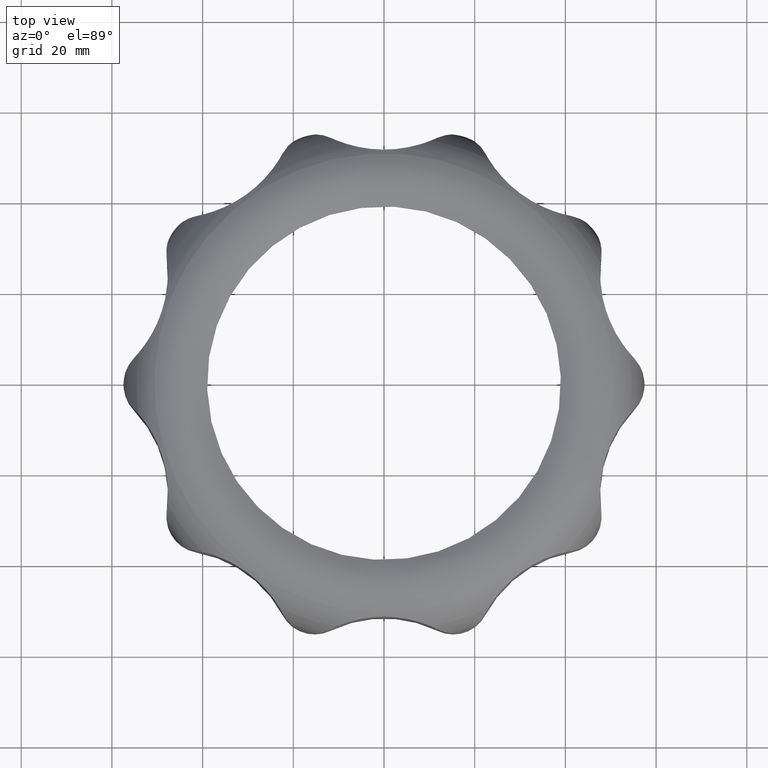
[diagram: clean part render]
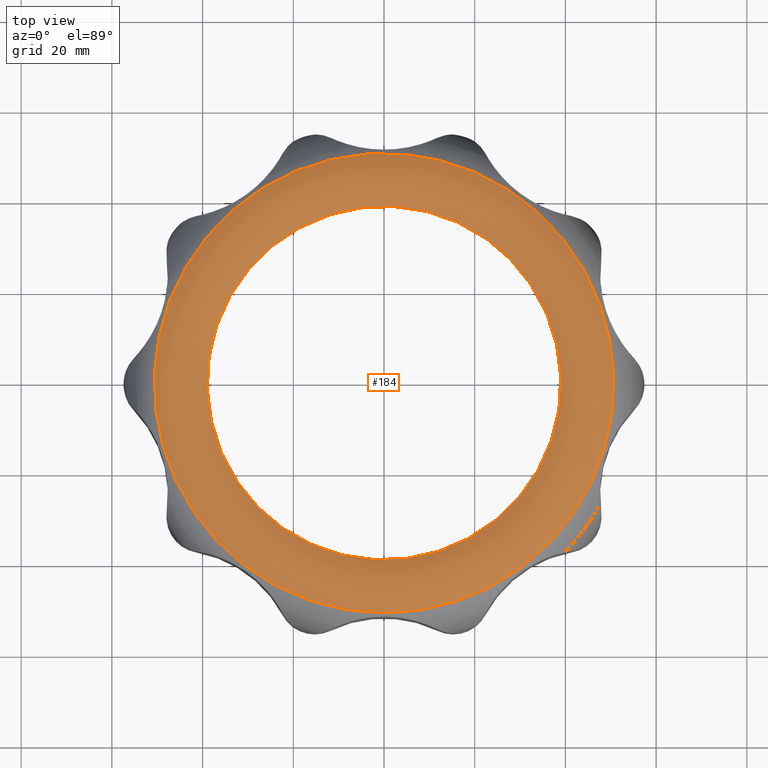
[diagram: same view with one face highlighted and labeled with its STEP entity id]
A machine part, top view. The second image highlights one B-rep face of the part: STEP entity #184.
In plain terms, the highlighted toroidal blend (fillet) surface has major radius 44.75 mm and minor (blend) radius 10.3 mm.
Its self-contained STEP definition (entity closure, byte-faithful):
#184 = ADVANCED_FACE( '', ( #2453, #2454 ), #2455, .T. );
#2453 = FACE_OUTER_BOUND( '', #6753, .T. );
#2454 = FACE_OUTER_BOUND( '', #6754, .T. );
#2455 = TOROIDAL_SURFACE( '', #6755, 44.7500090000000, 10.3000000000000 );
#6753 = EDGE_LOOP( '', ( #13619 ) );
#6754 = EDGE_LOOP( '', ( #13620 ) );
#6755 = AXIS2_PLACEMENT_3D( '', #13621, #13622, #13623 );
#13619 = ORIENTED_EDGE( '', *, *, #32006, .F. );
#13620 = ORIENTED_EDGE( '', *, *, #31998, .T. );
#13621 = CARTESIAN_POINT( '', ( 0.000000000000000, 0.000000000000000, -8.54560685381205 ) );
#13622 = DIRECTION( '', ( 1.89212087375327E-017, -5.82334926349610E-017, 1.00000000000000 ) );
#13623 = DIRECTION( '', ( 0.309016994374947, -0.951056516295154, -6.12303176911189E-017 ) );
#31998 = EDGE_CURVE( '', #40384, #40384, #40385, .T. );
#32006 = EDGE_CURVE( '', #40393, #40393, #40394, .T. );
#40384 = VERTEX_POINT( '', #58335 );
#40385 = CIRCLE( '', #58336, 50.6578461129477 );
#40393 = VERTEX_POINT( '', #58344 );
#40394 = CIRCLE( '', #58345, 39.0000000000000 );
#58335 = CARTESIAN_POINT( '', ( 15.6541353473317, -48.1784746471960, -0.108340872264051 ) );
#58336 = AXIS2_PLACEMENT_3D( '', #74438, #74439, #74440 );
#58344 = CARTESIAN_POINT( '', ( 12.0516627806229, -37.0912041355110, -2.38798238995364E-015 ) );
#58345 = AXIS2_PLACEMENT_3D( '', #74462, #74463, #74464 );
#74438 = CARTESIAN_POINT( '', ( 0.000000000000000, 0.000000000000000, -0.108340872264048 ) );
#74439 = DIRECTION( '', ( 1.89212087375327E-017, -5.82334926349610E-017, 1.00000000000000 ) );
#74440 = DIRECTION( '', ( 0.309016994374947, -0.951056516295154, -6.12303176911189E-017 ) );
#74462 = CARTESIAN_POINT( '', ( 0.000000000000000, 0.000000000000000, 0.000000000000000 ) );
#74463 = DIRECTION( '', ( 1.89212087375327E-017, -5.82334926349611E-017, 1.00000000000000 ) );
#74464 = DIRECTION( '', ( 0.309016994374947, -0.951056516295154, -6.12303176911189E-017 ) );